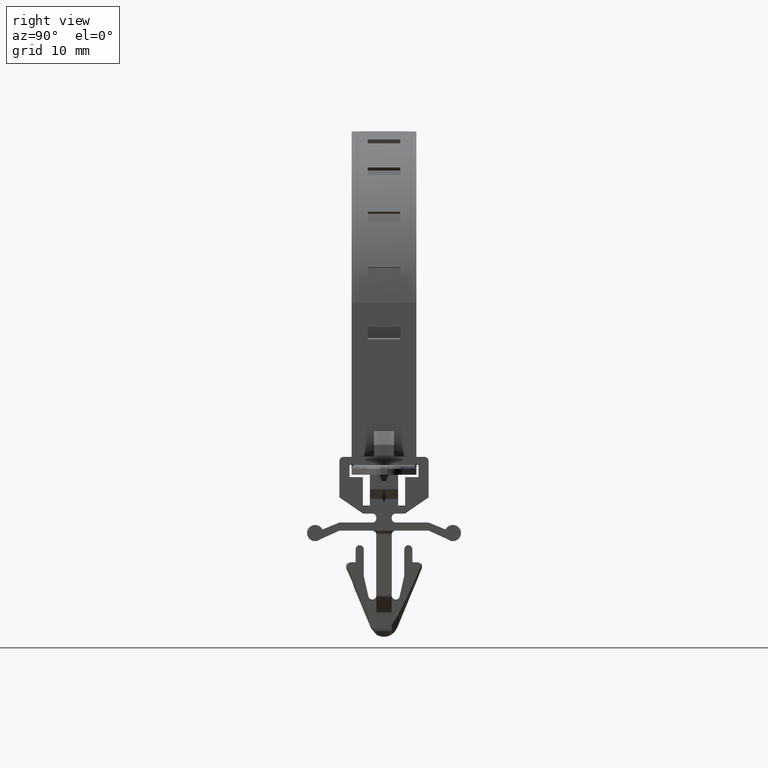
[diagram: clean part render]
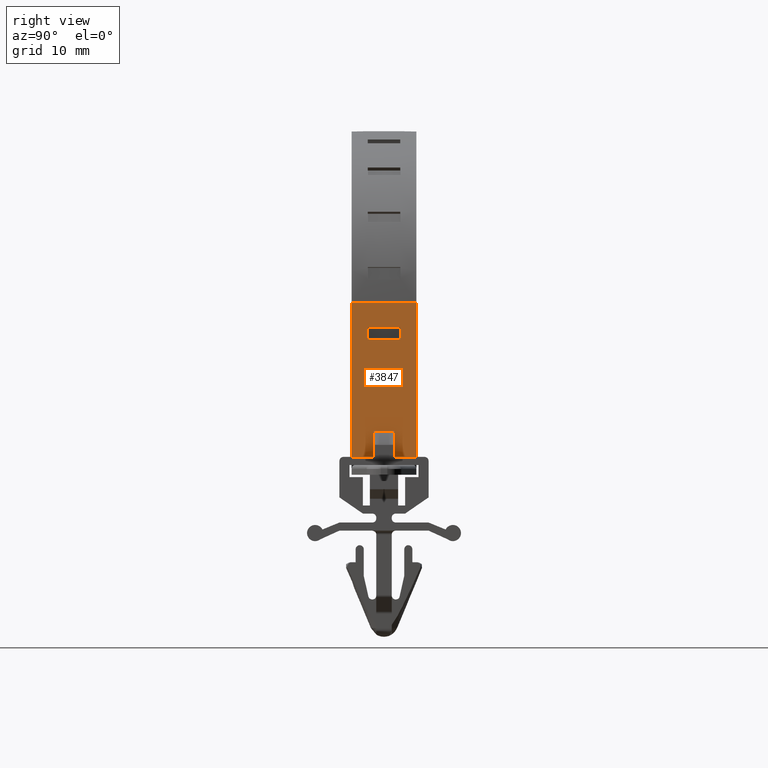
[diagram: same view with one face highlighted and labeled with its STEP entity id]
A machine part, right view. The second image highlights one B-rep face of the part: STEP entity #3847.
In plain terms, the highlighted face is a freeform B-spline surface patch.
Its self-contained STEP definition (entity closure, byte-faithful):
#2442=CARTESIAN_POINT('',(11.199999999999999,-2.0,7.023437967894840));
#2443=VERTEX_POINT('',#2442);
#2444=CARTESIAN_POINT('',(11.199999999999999,-2.0,5.500298050066220));
#2445=VERTEX_POINT('',#2444);
#2446=CARTESIAN_POINT('',(11.199999999999999,-2.0,7.023437967894840));
#2447=CARTESIAN_POINT('',(11.199999999999999,-2.0,5.500298050066220));
#2448=QUASI_UNIFORM_CURVE('',1,(#2446,#2447),.UNSPECIFIED.,.F.,.U.);
#2449=EDGE_CURVE('',#2443,#2445,#2448,.T.);
#2478=CARTESIAN_POINT('',(11.199999999999999,2.0,7.023437967894840));
#2479=VERTEX_POINT('',#2478);
#2494=CARTESIAN_POINT('',(11.199999999999999,2.0,5.500298050066220));
#2495=VERTEX_POINT('',#2494);
#2501=CARTESIAN_POINT('',(11.199999999999999,2.0,7.023437967894840));
#2502=CARTESIAN_POINT('',(11.199999999999999,2.0,5.500298050066220));
#2503=QUASI_UNIFORM_CURVE('',1,(#2501,#2502),.UNSPECIFIED.,.F.,.U.);
#2504=EDGE_CURVE('',#2479,#2495,#2503,.T.);
#2514=CARTESIAN_POINT('',(11.199999999999999,-2.0,5.500298050066220));
#2515=CARTESIAN_POINT('',(11.199999999999999,2.0,5.500298050066220));
#2516=QUASI_UNIFORM_CURVE('',1,(#2514,#2515),.UNSPECIFIED.,.F.,.U.);
#2517=EDGE_CURVE('',#2445,#2495,#2516,.T.);
#2550=CARTESIAN_POINT('',(11.199999999999999,2.0,7.023437967894840));
#2551=CARTESIAN_POINT('',(11.199999999999999,-2.0,7.023437967894840));
#2552=QUASI_UNIFORM_CURVE('',1,(#2550,#2551),.UNSPECIFIED.,.F.,.U.);
#2553=EDGE_CURVE('',#2479,#2443,#2552,.T.);
#3343=CARTESIAN_POINT('',(11.199999999999999,-1.250000000000000,-9.000000000000199));
#3344=VERTEX_POINT('',#3343);
#3350=CARTESIAN_POINT('',(11.199999999999999,-4.0,-9.000000000000199));
#3351=VERTEX_POINT('',#3350);
#3352=CARTESIAN_POINT('',(11.199999999999999,-1.250000000000000,-9.000000000000199));
#3353=CARTESIAN_POINT('',(11.199999999999999,-4.0,-9.000000000000199));
#3354=QUASI_UNIFORM_CURVE('',1,(#3352,#3353),.UNSPECIFIED.,.F.,.U.);
#3355=EDGE_CURVE('',#3344,#3351,#3354,.T.);
#3414=CARTESIAN_POINT('',(11.199999999999999,-4.0,10.0));
#3415=VERTEX_POINT('',#3414);
#3416=CARTESIAN_POINT('',(11.199999999999999,-4.0,-9.000000000000199));
#3417=CARTESIAN_POINT('',(11.199999999999999,-4.0,10.0));
#3418=QUASI_UNIFORM_CURVE('',1,(#3416,#3417),.UNSPECIFIED.,.F.,.U.);
#3419=EDGE_CURVE('',#3351,#3415,#3418,.T.);
#3493=CARTESIAN_POINT('',(11.199999999999999,4.0,-9.000000000000199));
#3494=VERTEX_POINT('',#3493);
#3542=CARTESIAN_POINT('',(11.199999999999999,4.0,10.0));
#3543=VERTEX_POINT('',#3542);
#3569=CARTESIAN_POINT('',(11.199999999999999,4.0,-9.000000000000199));
#3570=CARTESIAN_POINT('',(11.199999999999999,4.0,10.0));
#3571=QUASI_UNIFORM_CURVE('',1,(#3569,#3570),.UNSPECIFIED.,.F.,.U.);
#3572=EDGE_CURVE('',#3494,#3543,#3571,.T.);
#3716=CARTESIAN_POINT('',(11.199999999999999,4.0,10.0));
#3717=CARTESIAN_POINT('',(11.199999999999999,-4.0,10.0));
#3718=QUASI_UNIFORM_CURVE('',1,(#3716,#3717),.UNSPECIFIED.,.F.,.U.);
#3719=EDGE_CURVE('',#3543,#3415,#3718,.T.);
#3804=CARTESIAN_POINT('',(11.199999999999999,-4.399599984494448,10.949049963174319));
#3805=CARTESIAN_POINT('',(11.199999999999999,-4.399599984494448,-9.949050472794234));
#3806=CARTESIAN_POINT('',(11.199999999999999,4.399600199071169,10.949049963174319));
#3807=CARTESIAN_POINT('',(11.199999999999999,4.399600199071169,-9.949050472794234));
#3808=B_SPLINE_SURFACE_WITH_KNOTS('',1,1,((#3804,#3806),(#3805,#3807)),.UNSPECIFIED.,.F.,.F.,.U.,(2,2),(2,2),(0.0,20.898100435968558),(0.0,8.799200183565617),.UNSPECIFIED.);
#3809=CARTESIAN_POINT('',(11.199999999999999,1.250000000000000,-9.000000000000199));
#3810=VERTEX_POINT('',#3809);
#3811=CARTESIAN_POINT('',(11.199999999999999,1.249999999999972,-5.799999999999780));
#3812=VERTEX_POINT('',#3811);
#3813=CARTESIAN_POINT('',(11.199999999999999,1.250000000000000,-9.000000000000199));
#3814=CARTESIAN_POINT('',(11.199999999999999,1.249999999999972,-5.799999999999780));
#3815=QUASI_UNIFORM_CURVE('',1,(#3813,#3814),.UNSPECIFIED.,.F.,.U.);
#3816=EDGE_CURVE('',#3810,#3812,#3815,.T.);
#3817=ORIENTED_EDGE('',*,*,#3816,.F.);
#3818=CARTESIAN_POINT('',(11.199999999999999,4.0,-9.000000000000199));
#3819=CARTESIAN_POINT('',(11.199999999999999,1.250000000000000,-9.000000000000199));
#3820=QUASI_UNIFORM_CURVE('',1,(#3818,#3819),.UNSPECIFIED.,.F.,.U.);
#3821=EDGE_CURVE('',#3494,#3810,#3820,.T.);
#3822=ORIENTED_EDGE('',*,*,#3821,.F.);
#3823=ORIENTED_EDGE('',*,*,#3572,.T.);
#3824=ORIENTED_EDGE('',*,*,#3719,.T.);
#3825=ORIENTED_EDGE('',*,*,#3419,.F.);
#3826=ORIENTED_EDGE('',*,*,#3355,.F.);
#3827=CARTESIAN_POINT('',(11.199999999999999,-1.249999999999972,-5.799999999999780));
#3828=VERTEX_POINT('',#3827);
#3829=CARTESIAN_POINT('',(11.199999999999999,-1.250000000000000,-9.000000000000199));
#3830=CARTESIAN_POINT('',(11.199999999999999,-1.249999999999972,-5.799999999999780));
#3831=QUASI_UNIFORM_CURVE('',1,(#3829,#3830),.UNSPECIFIED.,.F.,.U.);
#3832=EDGE_CURVE('',#3344,#3828,#3831,.T.);
#3833=ORIENTED_EDGE('',*,*,#3832,.T.);
#3834=CARTESIAN_POINT('',(11.199999999999999,1.249999999999972,-5.799999999999780));
#3835=CARTESIAN_POINT('',(11.199999999999999,-1.249999999999972,-5.799999999999780));
#3836=QUASI_UNIFORM_CURVE('',1,(#3834,#3835),.UNSPECIFIED.,.F.,.U.);
#3837=EDGE_CURVE('',#3812,#3828,#3836,.T.);
#3838=ORIENTED_EDGE('',*,*,#3837,.F.);
#3839=EDGE_LOOP('',(#3817,#3822,#3823,#3824,#3825,#3826,#3833,#3838));
#3840=FACE_OUTER_BOUND('',#3839,.T.);
#3841=ORIENTED_EDGE('',*,*,#2553,.F.);
#3842=ORIENTED_EDGE('',*,*,#2504,.T.);
#3843=ORIENTED_EDGE('',*,*,#2517,.F.);
#3844=ORIENTED_EDGE('',*,*,#2449,.F.);
#3845=EDGE_LOOP('',(#3841,#3842,#3843,#3844));
#3846=FACE_BOUND('',#3845,.T.);
#3847=ADVANCED_FACE('',(#3840,#3846),#3808,.T.);